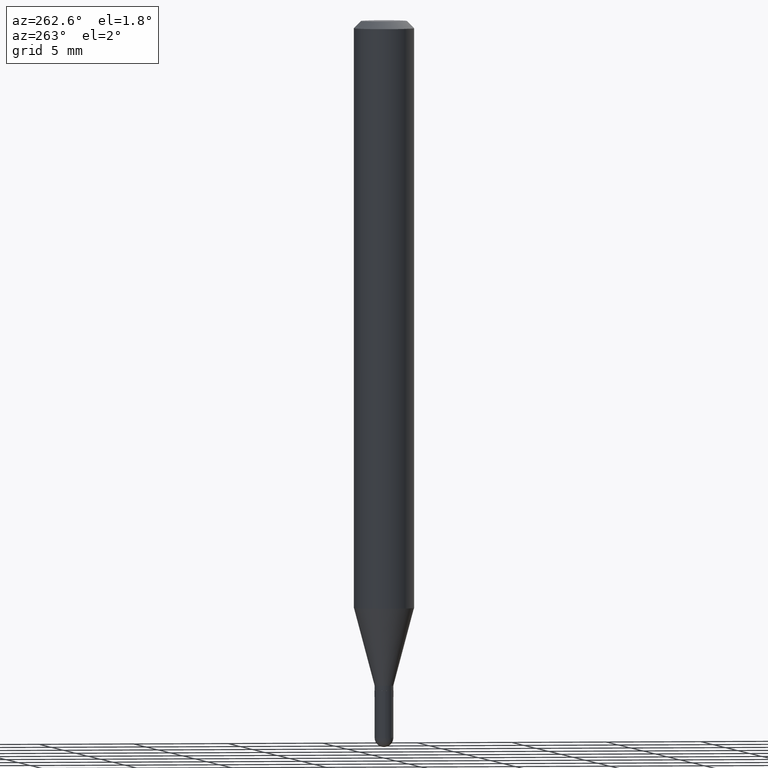
[diagram: clean part render]
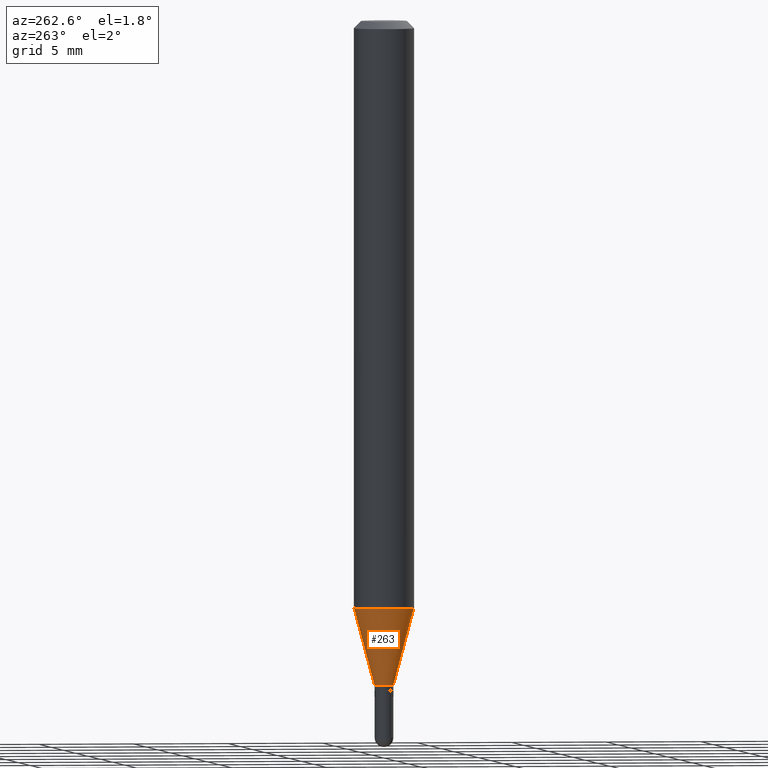
[diagram: same view with one face highlighted and labeled with its STEP entity id]
A machine part, auxiliary view. The second image highlights one B-rep face of the part: STEP entity #263.
In plain terms, the highlighted conical surface has half-angle 15 deg.
Its self-contained STEP definition (entity closure, byte-faithful):
#3 = DIRECTION ( 'NONE',  ( 1.839019923739599526E-15, 0.2588190451025248473, 0.9659258262890670910 ) ) ;
#4 = EDGE_CURVE ( 'NONE', #85, #42, #150, .T. ) ;
#10 = EDGE_CURVE ( 'NONE', #42, #93, #144, .T. ) ;
#23 = CARTESIAN_POINT ( 'NONE',  ( -1.361677722148480659E-16, -0.01950000000000471495, -1.372999999999999998 ) ) ;
#42 = VERTEX_POINT ( 'NONE', #428 ) ;
#66 = CARTESIAN_POINT ( 'NONE',  ( 4.440892098500920012E-16, 0.06249999999999574646, -1.212521815274538728 ) ) ;
#74 = DIRECTION ( 'NONE',  ( -2.445470934524949177E-29, 3.491478290939396470E-15, 1.000000000000000000 ) ) ;
#84 = LINE ( 'NONE', #159, #247 ) ;
#85 = VERTEX_POINT ( 'NONE', #294 ) ;
#93 = VERTEX_POINT ( 'NONE', #461 ) ;
#95 = ORIENTED_EDGE ( 'NONE', *, *, #10, .T. ) ;
#99 = DIRECTION ( 'NONE',  ( -2.445470934524949177E-29, 3.491478290939396470E-15, 1.000000000000000000 ) ) ;
#117 = CARTESIAN_POINT ( 'NONE',  ( 3.357631593102754865E-29, -4.793799693459790864E-15, -1.372999999999999998 ) ) ;
#120 = ORIENTED_EDGE ( 'NONE', *, *, #500, .F. ) ;
#123 = CONICAL_SURFACE ( 'NONE', #185, 0.01949999999999992017, 0.2617993877991501850 ) ;
#144 = LINE ( 'NONE', #23, #454 ) ;
#148 = EDGE_LOOP ( 'NONE', ( #198, #151, #95, #120 ) ) ;
#150 = CIRCLE ( 'NONE', #157, 0.01949999999999992017 ) ;
#151 = ORIENTED_EDGE ( 'NONE', *, *, #4, .T. ) ;
#157 = AXIS2_PLACEMENT_3D ( 'NONE', #465, #174, #499 ) ;
#159 = CARTESIAN_POINT ( 'NONE',  ( 1.385558334732525203E-16, 0.01949999999999512887, -1.372999999999999998 ) ) ;
#174 = DIRECTION ( 'NONE',  ( -2.445470934524949177E-29, 3.491478290939396470E-15, 1.000000000000000000 ) ) ;
#185 = AXIS2_PLACEMENT_3D ( 'NONE', #117, #74, #188 ) ;
#188 = DIRECTION ( 'NONE',  ( -6.982962677686266711E-15, -1.000000000000000000, 0.000000000000000000 ) ) ;
#196 = VERTEX_POINT ( 'NONE', #66 ) ;
#198 = ORIENTED_EDGE ( 'NONE', *, *, #439, .F. ) ;
#231 = CIRCLE ( 'NONE', #365, 0.06250000000000000000 ) ;
#235 = CARTESIAN_POINT ( 'NONE',  ( 2.965186856731312927E-29, -4.233493595321480770E-15, -1.212521815274538506 ) ) ;
#247 = VECTOR ( 'NONE', #3, 39.37007874015748143 ) ;
#263 = ADVANCED_FACE ( 'NONE', ( #440 ), #123, .T. ) ;
#294 = CARTESIAN_POINT ( 'NONE',  ( 2.913225216616725443E-16, 0.01949999999999512887, -1.372999999999999998 ) ) ;
#365 = AXIS2_PLACEMENT_3D ( 'NONE', #235, #99, #458 ) ;
#425 = DIRECTION ( 'NONE',  ( -1.807323732225329350E-15, -0.2588190451025180194, 0.9659258262890689783 ) ) ;
#428 = CARTESIAN_POINT ( 'NONE',  ( -1.361677722148480659E-16, -0.01950000000000471495, -1.372999999999999998 ) ) ;
#439 = EDGE_CURVE ( 'NONE', #85, #196, #84, .T. ) ;
#440 = FACE_OUTER_BOUND ( 'NONE', #148, .T. ) ;
#454 = VECTOR ( 'NONE', #425, 39.37007874015749564 ) ;
#458 = DIRECTION ( 'NONE',  ( -6.982962677686265922E-15, -1.000000000000000000, 4.370956789862821150E-15 ) ) ;
#461 = CARTESIAN_POINT ( 'NONE',  ( -4.364351673553621364E-16, -0.06250000000000424660, -1.212521815274538284 ) ) ;
#465 = CARTESIAN_POINT ( 'NONE',  ( 3.357631593102754865E-29, -4.793799693459790864E-15, -1.372999999999999998 ) ) ;
#499 = DIRECTION ( 'NONE',  ( -6.982962677686266711E-15, -1.000000000000000000, 0.000000000000000000 ) ) ;
#500 = EDGE_CURVE ( 'NONE', #196, #93, #231, .T. ) ;